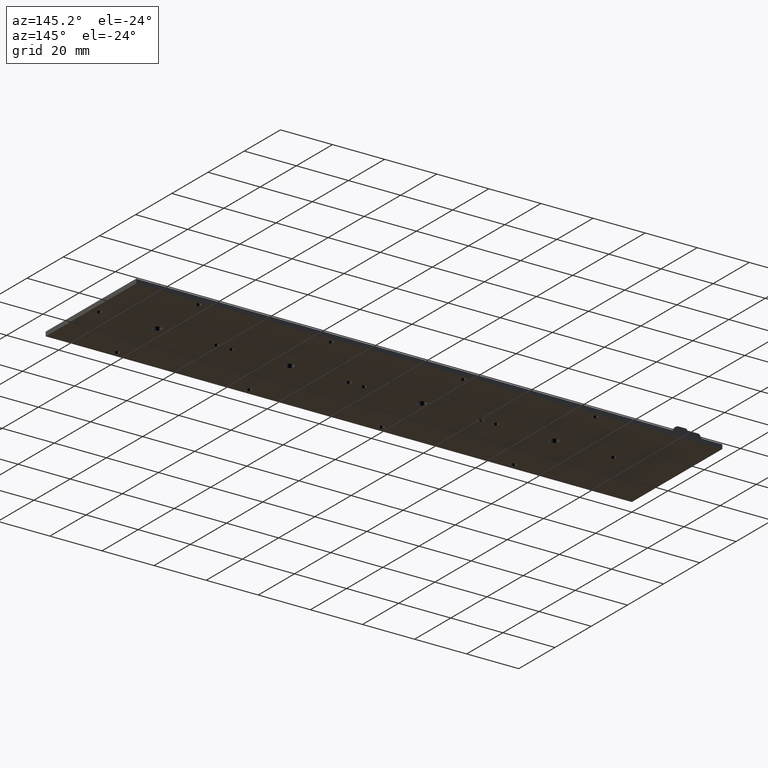
[diagram: clean part render]
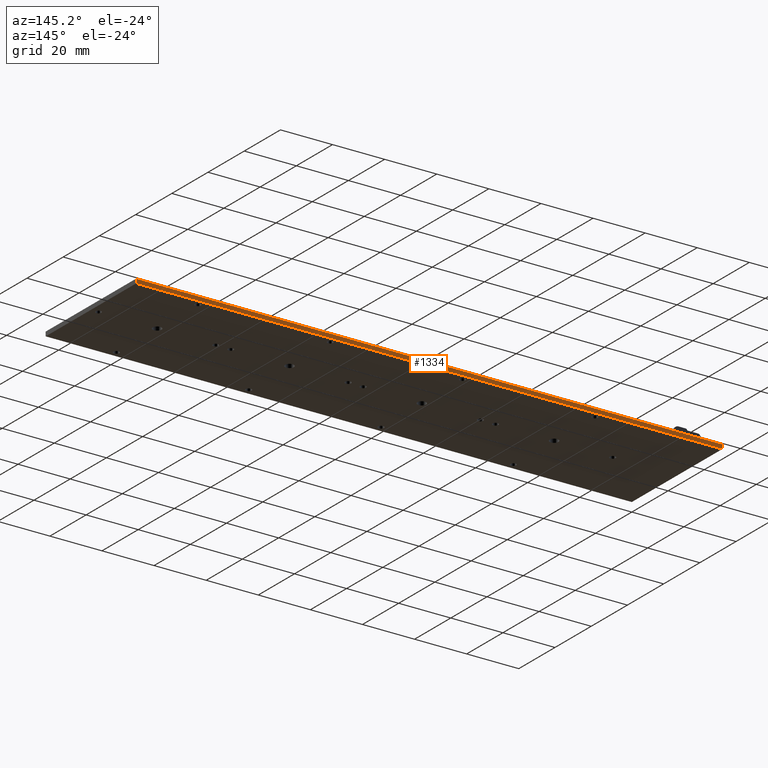
[diagram: same view with one face highlighted and labeled with its STEP entity id]
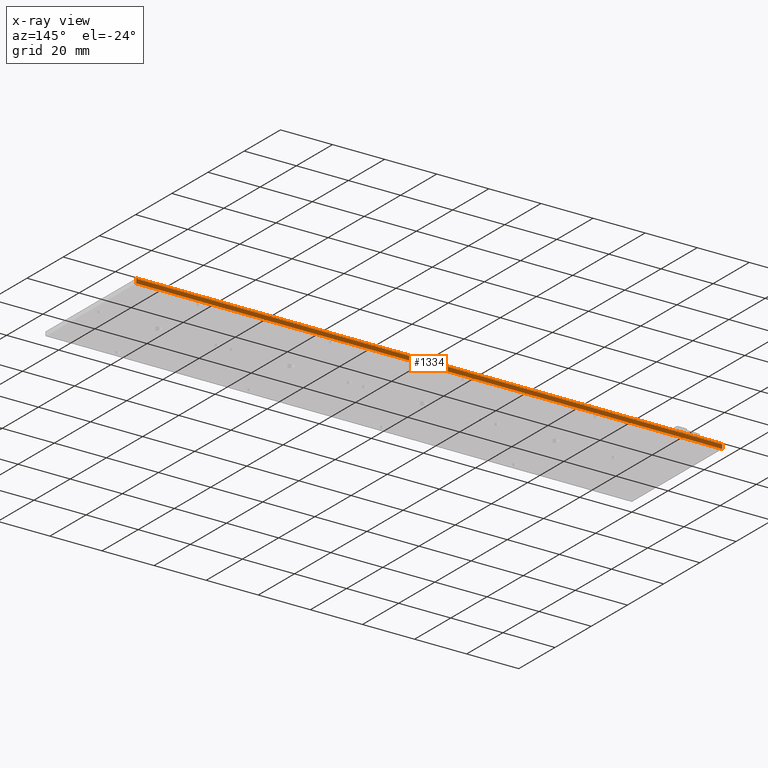
[diagram: x-ray of the same camera — body ghosted, the highlighted face saturated]
A machine part, auxiliary view. The second image highlights one B-rep face of the part: STEP entity #1334.
The next image is the same camera in x-ray: the body ghosted, the highlighted face saturated — about 0% of this face is hidden behind the body in this view.
In plain terms, the highlighted planar face has unit normal (0, -1, 0).
Its self-contained STEP definition (entity closure, byte-faithful):
#1334=ADVANCED_FACE('',(#1771),#1605,.F.);
#1605=PLANE('',#6046);
#1771=FACE_OUTER_BOUND('',#2015,.T.);
#2015=EDGE_LOOP('',(#2352,#2353,#2354,#2355));
#2352=ORIENTED_EDGE('',*,*,#4306,.T.);
#2353=ORIENTED_EDGE('',*,*,#4307,.F.);
#2354=ORIENTED_EDGE('',*,*,#4308,.F.);
#2355=ORIENTED_EDGE('',*,*,#4309,.T.);
#3810=VERTEX_POINT('',#8013);
#3811=VERTEX_POINT('',#8014);
#3812=VERTEX_POINT('',#8016);
#3813=VERTEX_POINT('',#8018);
#4306=EDGE_CURVE('',#3810,#3811,#5035,.T.);
#4307=EDGE_CURVE('',#3812,#3811,#5036,.T.);
#4308=EDGE_CURVE('',#3813,#3812,#5037,.T.);
#4309=EDGE_CURVE('',#3813,#3810,#5038,.T.);
#5035=LINE('',#8012,#5540);
#5036=LINE('',#8015,#5541);
#5037=LINE('',#8017,#5542);
#5038=LINE('',#8019,#5543);
#5540=VECTOR('',#6534,1.);
#5541=VECTOR('',#6535,1.);
#5542=VECTOR('',#6536,1.);
#5543=VECTOR('',#6537,1.);
#6046=AXIS2_PLACEMENT_3D('',#8020,#6538,#6539);
#6534=DIRECTION('',(1.,0.,0.));
#6535=DIRECTION('',(0.,0.,1.));
#6536=DIRECTION('',(1.,0.,0.));
#6537=DIRECTION('',(0.,0.,1.));
#6538=DIRECTION('',(0.,-1.,0.));
#6539=DIRECTION('',(0.,0.,-1.));
#8012=CARTESIAN_POINT('',(0.,50.,0.));
#8013=CARTESIAN_POINT('',(0.,50.,0.));
#8014=CARTESIAN_POINT('',(225.,50.,0.));
#8015=CARTESIAN_POINT('',(225.,50.,-1.65));
#8016=CARTESIAN_POINT('',(225.,50.,-1.65));
#8017=CARTESIAN_POINT('',(0.,50.,-1.65));
#8018=CARTESIAN_POINT('',(0.,50.,-1.65));
#8019=CARTESIAN_POINT('',(0.,50.,-1.65));
#8020=CARTESIAN_POINT('',(0.,50.,-1.65));